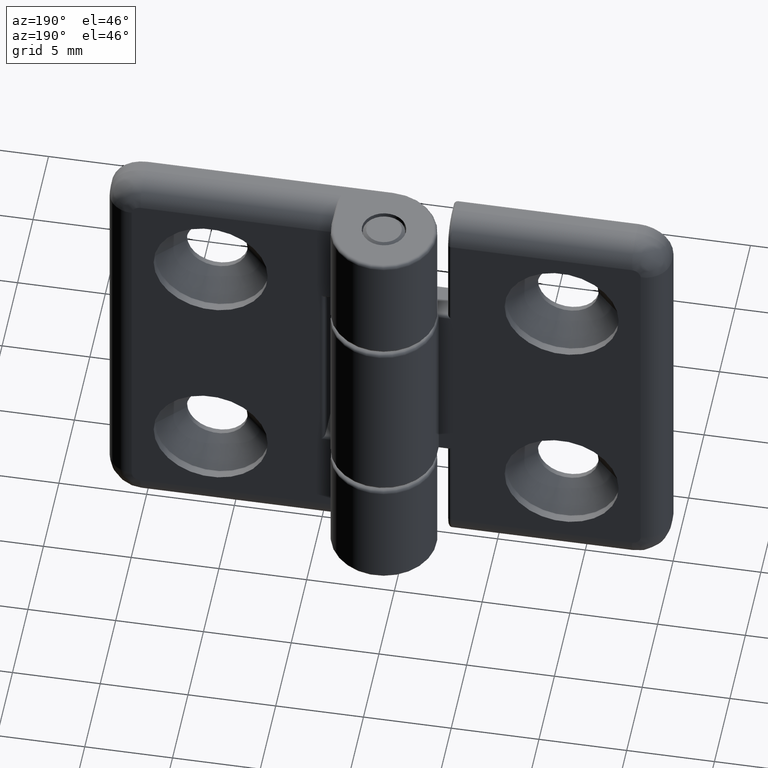
[diagram: clean part render]
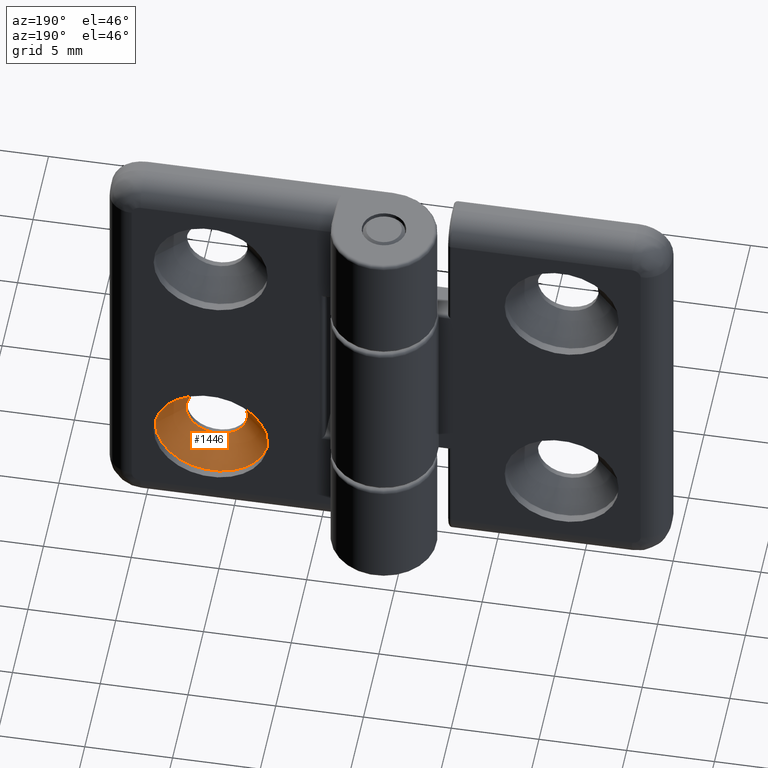
[diagram: same view with one face highlighted and labeled with its STEP entity id]
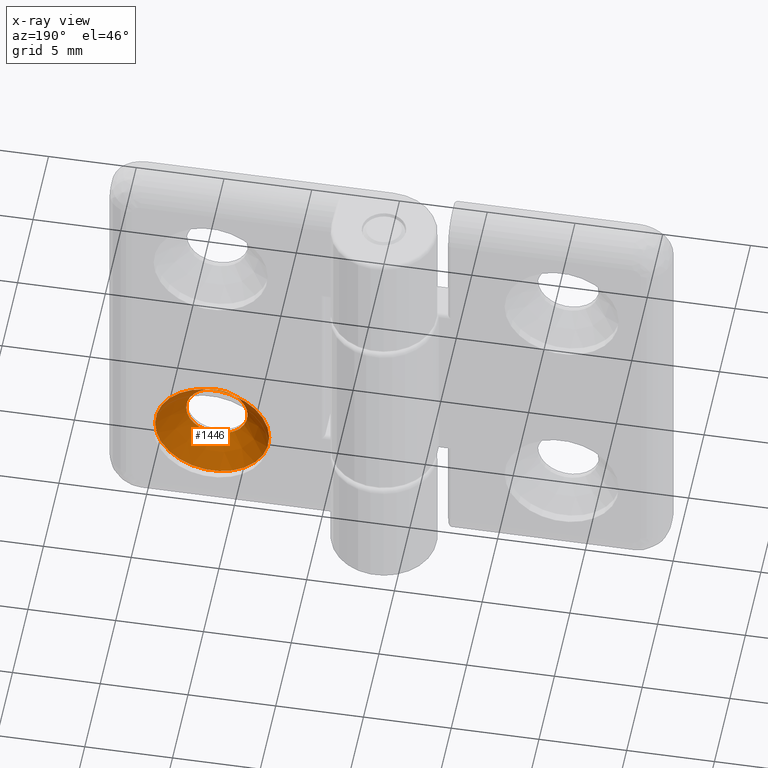
[diagram: x-ray of the same camera — body ghosted, the highlighted face saturated]
A machine part, auxiliary view. The second image highlights one B-rep face of the part: STEP entity #1446.
The next image is the same camera in x-ray: the body ghosted, the highlighted face saturated — about 0% of this face is hidden behind the body in this view.
In plain terms, the highlighted conical surface has half-angle 45 deg.
Its self-contained STEP definition (entity closure, byte-faithful):
#40=CONICAL_SURFACE('',#1593,2.5,0.785398163397448);
#68=FACE_BOUND('',#269,.T.);
#162=FACE_OUTER_BOUND('',#268,.T.);
#268=EDGE_LOOP('',(#1128));
#269=EDGE_LOOP('',(#1129));
#575=CIRCLE('',#1594,3.25);
#576=CIRCLE('',#1595,1.75);
#689=VERTEX_POINT('',#2445);
#690=VERTEX_POINT('',#2447);
#850=EDGE_CURVE('',#689,#689,#575,.T.);
#851=EDGE_CURVE('',#690,#690,#576,.T.);
#1128=ORIENTED_EDGE('',*,*,#850,.F.);
#1129=ORIENTED_EDGE('',*,*,#851,.F.);
#1446=ADVANCED_FACE('',(#162,#68),#40,.F.);
#1593=AXIS2_PLACEMENT_3D('',#2444,#1929,#1930);
#1594=AXIS2_PLACEMENT_3D('',#2446,#1931,#1932);
#1595=AXIS2_PLACEMENT_3D('',#2448,#1933,#1934);
#1929=DIRECTION('center_axis',(0.,1.,0.));
#1930=DIRECTION('ref_axis',(1.,0.,0.));
#1931=DIRECTION('center_axis',(0.,-1.,0.));
#1932=DIRECTION('ref_axis',(1.,0.,0.));
#1933=DIRECTION('center_axis',(0.,1.,0.));
#1934=DIRECTION('ref_axis',(1.,0.,0.));
#2444=CARTESIAN_POINT('Origin',(10.,-1.95,-6.75));
#2445=CARTESIAN_POINT('',(13.25,-1.2,-6.75));
#2446=CARTESIAN_POINT('Origin',(10.,-1.2,-6.75));
#2447=CARTESIAN_POINT('',(11.75,-2.7,-6.75));
#2448=CARTESIAN_POINT('Origin',(10.,-2.7,-6.75));